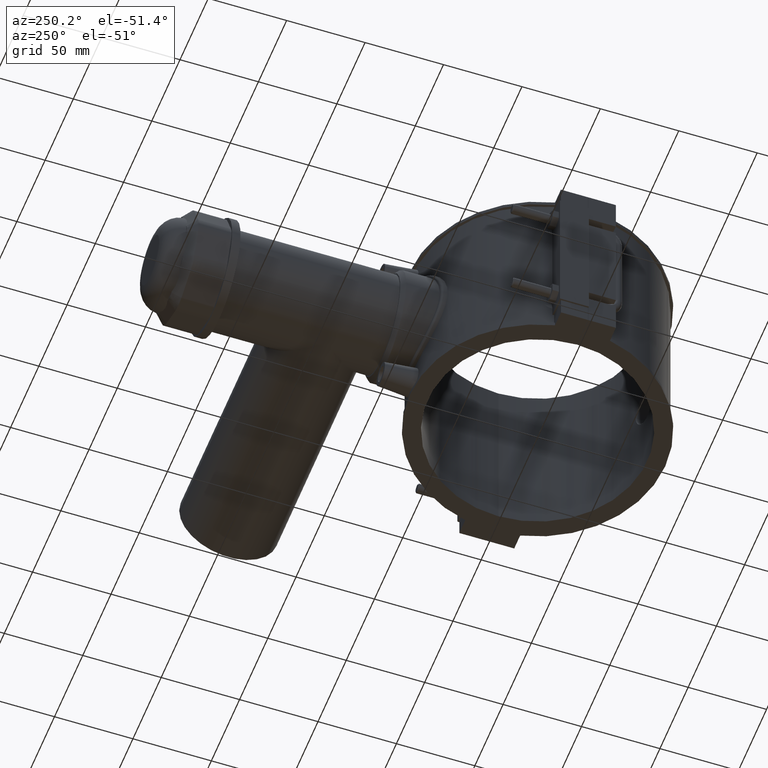
[diagram: clean part render]
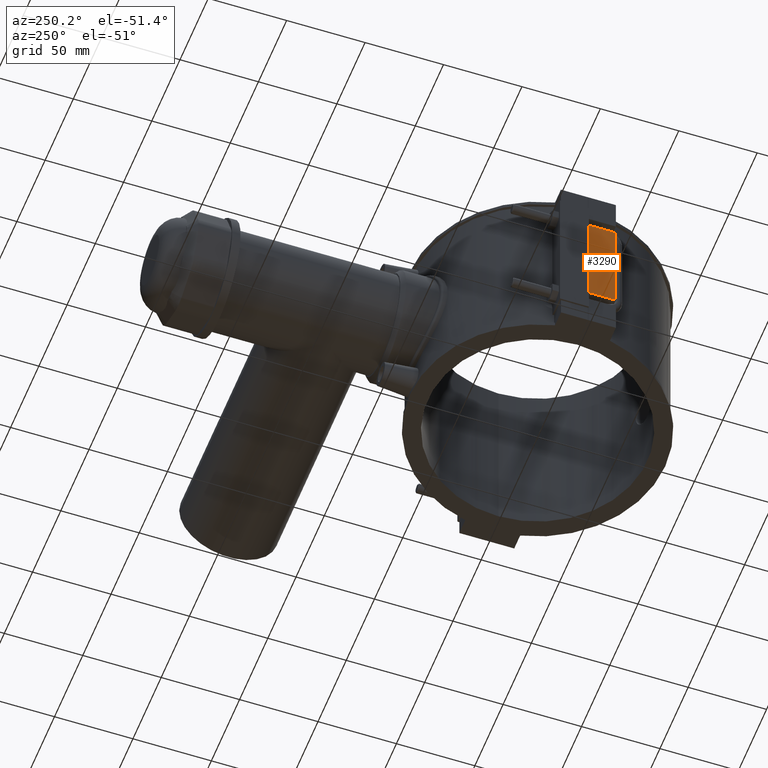
[diagram: same view with one face highlighted and labeled with its STEP entity id]
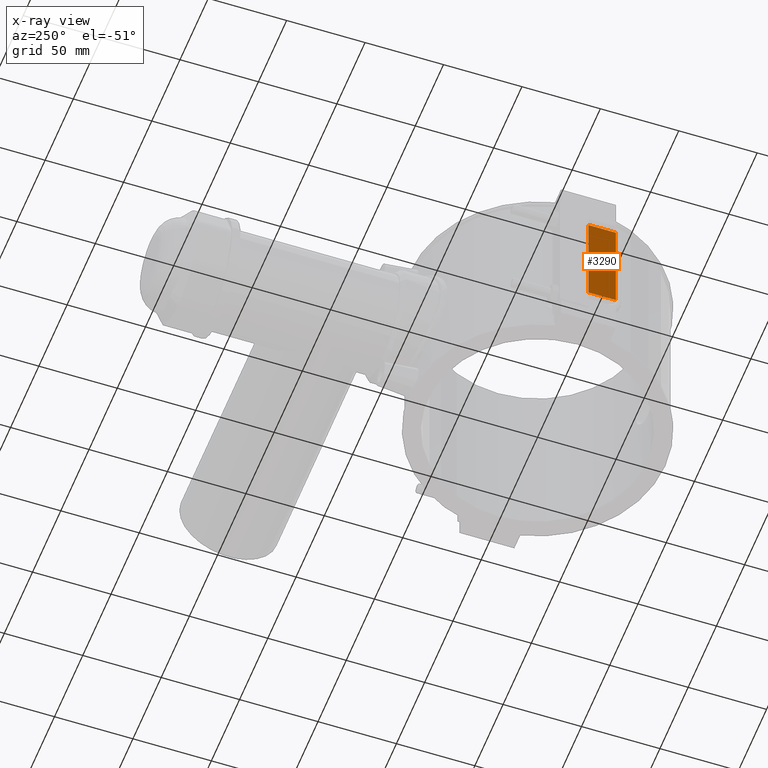
[diagram: x-ray of the same camera — body ghosted, the highlighted face saturated]
A machine part, auxiliary view. The second image highlights one B-rep face of the part: STEP entity #3290.
The next image is the same camera in x-ray: the body ghosted, the highlighted face saturated — about 0% of this face is hidden behind the body in this view.
In plain terms, the highlighted planar face has unit normal (-1, 0, 0).
Its self-contained STEP definition (entity closure, byte-faithful):
#251=LINE('',#6406,#538);
#254=LINE('',#6411,#541);
#256=LINE('',#6415,#543);
#271=LINE('',#6447,#558);
#538=VECTOR('',#4301,17.45);
#541=VECTOR('',#4306,64.8);
#543=VECTOR('',#4310,17.45);
#558=VECTOR('',#4345,64.8);
#918=FACE_OUTER_BOUND('',#1152,.T.);
#1152=EDGE_LOOP('',(#2768,#2769,#2770,#2771));
#1580=VERTEX_POINT('',#6403);
#1581=VERTEX_POINT('',#6405);
#1582=VERTEX_POINT('',#6409);
#1583=VERTEX_POINT('',#6413);
#1987=EDGE_CURVE('',#1581,#1580,#251,.T.);
#1990=EDGE_CURVE('',#1580,#1582,#254,.T.);
#1992=EDGE_CURVE('',#1582,#1583,#256,.T.);
#2009=EDGE_CURVE('',#1583,#1581,#271,.T.);
#2768=ORIENTED_EDGE('',*,*,#1992,.T.);
#2769=ORIENTED_EDGE('',*,*,#2009,.T.);
#2770=ORIENTED_EDGE('',*,*,#1987,.T.);
#2771=ORIENTED_EDGE('',*,*,#1990,.T.);
#3114=PLANE('',#3574);
#3290=ADVANCED_FACE('',(#918),#3114,.T.);
#3574=AXIS2_PLACEMENT_3D('',#6446,#4343,#4344);
#4301=DIRECTION('',(0.,-1.,0.));
#4306=DIRECTION('',(0.,0.,1.));
#4310=DIRECTION('',(0.,1.,0.));
#4343=DIRECTION('center_axis',(-1.,0.,0.));
#4344=DIRECTION('ref_axis',(0.,-1.,0.));
#4345=DIRECTION('',(0.,0.,-1.));
#6403=CARTESIAN_POINT('',(-90.,-17.5,-32.4));
#6405=CARTESIAN_POINT('',(-90.,-0.0500000000000078,-32.4));
#6406=CARTESIAN_POINT('',(-90.,-3.33066907387547E-15,-32.4));
#6409=CARTESIAN_POINT('',(-90.,-17.5,32.4));
#6411=CARTESIAN_POINT('',(-90.,-17.5,0.));
#6413=CARTESIAN_POINT('',(-90.,-0.0500000000000078,32.4));
#6415=CARTESIAN_POINT('',(-90.,-3.33066907387547E-15,32.4));
#6446=CARTESIAN_POINT('Origin',(-90.,17.5,0.));
#6447=CARTESIAN_POINT('',(-90.,-0.0500000000000078,-29.5));